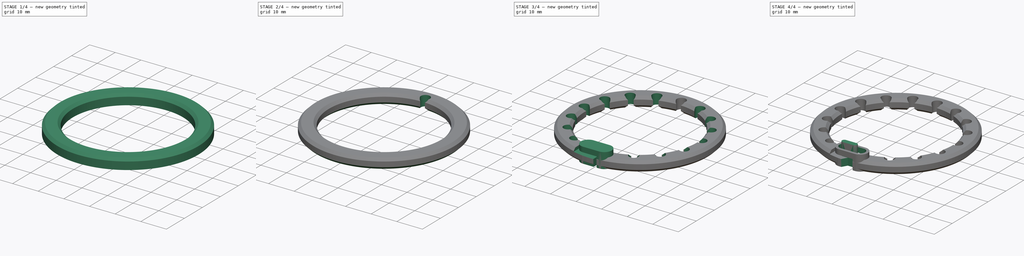
[diagram: build sequence overview — one tinted view per stage of 4, left to right]
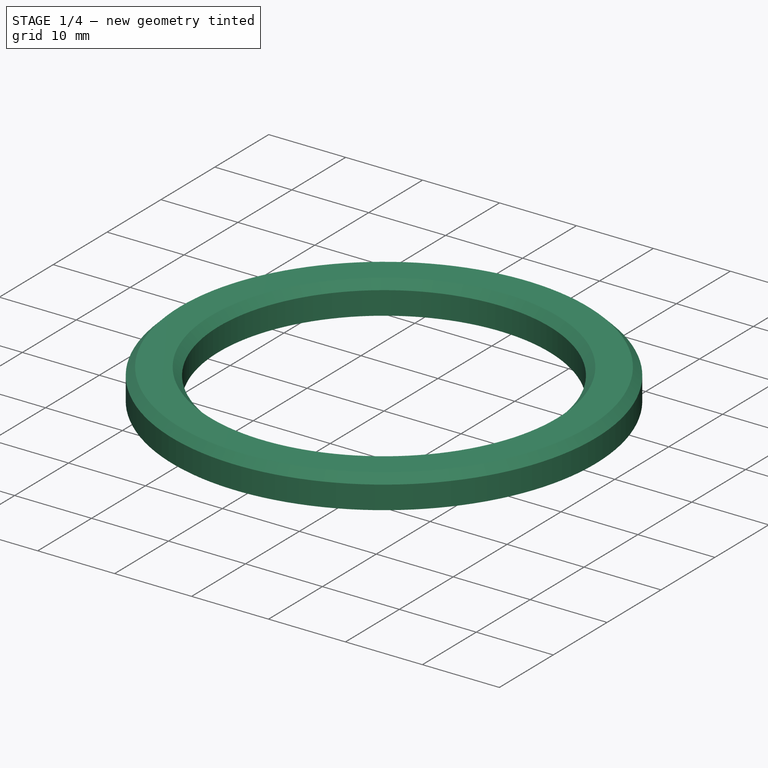
[diagram: stage 1 of 4 — iso view after this stage's code; geometry added in this stage tinted green]
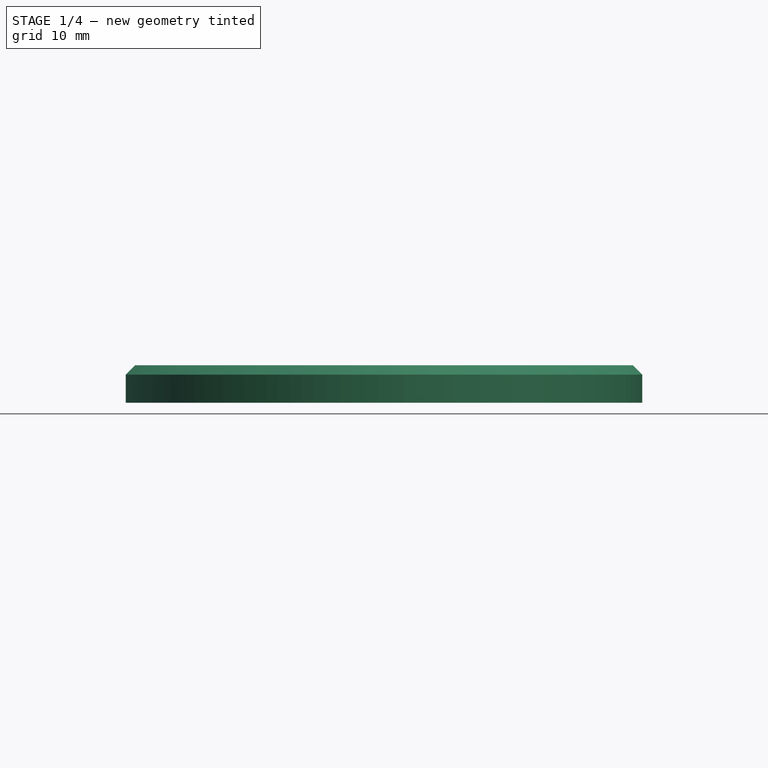
[diagram: stage 1 of 4 — front view after this stage's code; geometry added in this stage tinted green]
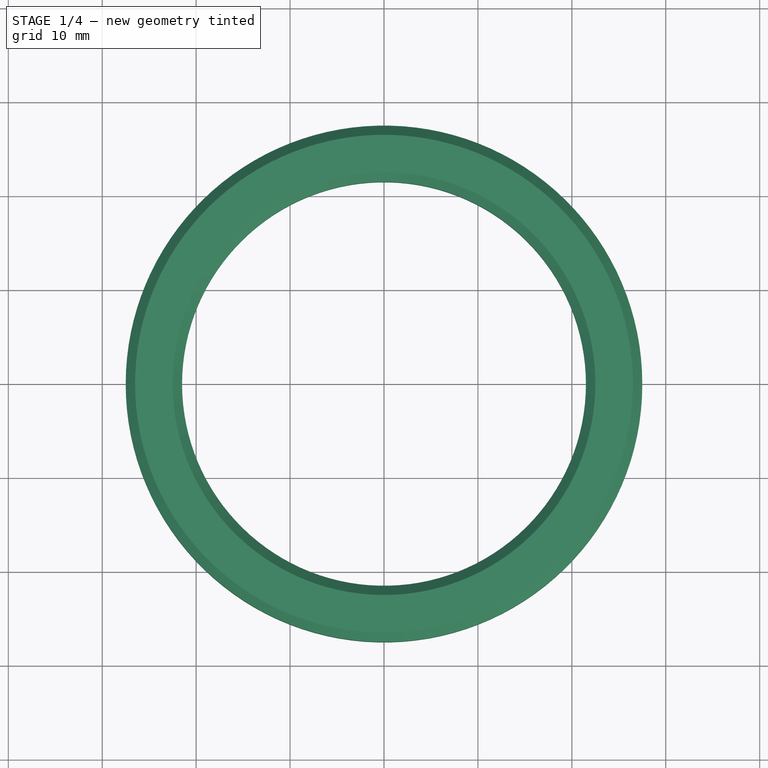
[diagram: stage 1 of 4 — top view after this stage's code; geometry added in this stage tinted green]
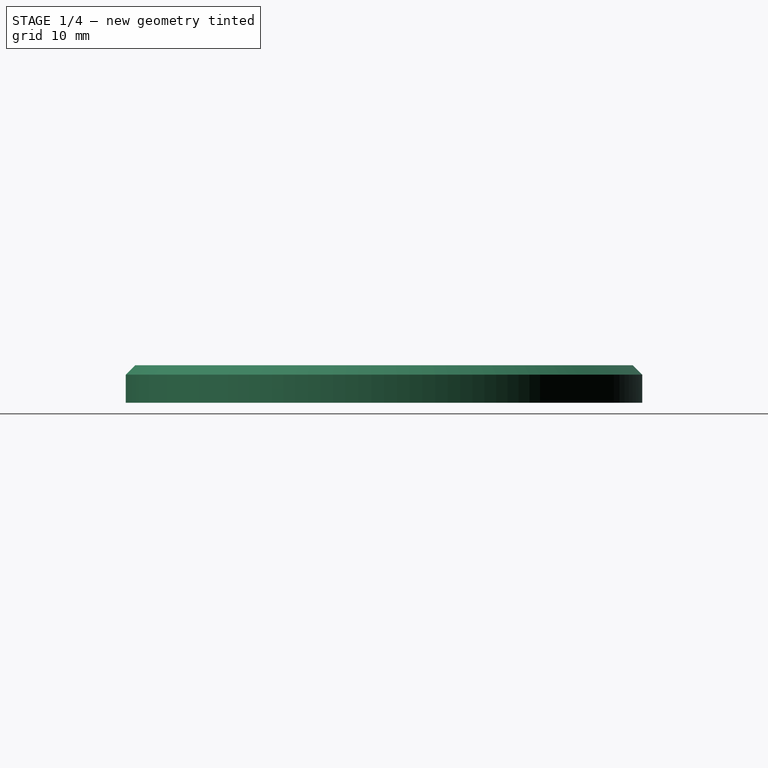
[diagram: stage 1 of 4 — right view after this stage's code; geometry added in this stage tinted green]
FCSTD DOCUMENT  (FreeCAD 0.17R13541 (Git))
Label: BigClip9
License: All rights reserved
LicenseURL: http://en.wikipedia.org/wiki/All_rights_reserved
objects: Sketcher::SketchObject×7, PartDesign::Chamfer×4, PartDesign::Pocket×4, PartDesign::Pad×3, PartDesign::PolarPattern×2, Spreadsheet::Sheet×1, PartDesign::Body×1
note: 28 computed .brp shape members not serialized (recipe doc carries the construction recipe); baked Part::Feature solids carry a one-line shape summary decoded from their .brp

FEATURE [Sketcher::SketchObject] Sketch
  MapMode = 5
  Support = -> [XY_Plane]
  expr: Constraints[3] = P.OuterRadius
  expr: Constraints[2] = P.InnerRadius
  sketch-geometry (2):
    g0: Circle CenterX=0 CenterY=0 CenterZ=0 NormalX=0 NormalY=0 NormalZ=1 AngleXU=0 Radius=21.5
    g1: Circle CenterX=0 CenterY=0 CenterZ=0 NormalX=0 NormalY=0 NormalZ=1 AngleXU=0 Radius=27.5
  constraints (5):
    c: Coincident(g0,g-1)
    c: PointOnObject(g1,g-2)
    c: Radius(g0) = 21.5
    c: Radius(g1) = 27.5
    c: Coincident(g1,g-1)
FEATURE [Spreadsheet::Sheet] Spreadsheet  label="P"
  cells = A1=Inner radius; B1(InnerRadius)==21.5mm; A2=Thick; B2(Thick)==5.5mm; A3=Wide; B3(Wide)==4mm; A4=Fiber radius; B4(FiberRadius)==1.8mm; A5=Outer radius; B5(OuterRadius)==27.5mm
FEATURE [PartDesign::Pad] Pad
  Length = 4
  Length2 = 100
  Profile = -> Sketch
  Type = 0
  expr: Length = P.Wide
FEATURE [Sketcher::SketchObject] Sketch001
  MapMode = 5
  Support = -> [XY_Plane]
  expr: Constraints[6] = P.FiberRadius
  expr: Constraints[3] = P.InnerRadius
  expr: Constraints[2] = P.InnerRadius
  sketch-geometry (3):
    g0: LineSegment StartX=0 StartY=0 StartZ=0 EndX=0.9 EndY=21.4812 EndZ=0
    g1: LineSegment StartX=-0.9 StartY=21.4812 StartZ=0 EndX=0 EndY=0 EndZ=0
    g2: ArcOfCircle CenterX=0 CenterY=23.04 CenterZ=0 NormalX=0 NormalY=0 NormalZ=1 AngleXU=0 Radius=1.8 StartAngle=5.23599 EndAngle=10.472
  constraints (9):
    c: Coincident(g1,g-1)
    c: Coincident(g0,g-1)
    c: Distance(g0) = 21.5
    c: Distance(g1) = 21.5
    c: Coincident(g2,g1)
    c: Coincident(g2,g0)
    c: Radius(g2) = 1.8
    c: Distance(g1,g0) = 1.8
    c: DistanceX(g-1,g2) = 0
FEATURE [PartDesign::Chamfer] Chamfer
  Base = -> Pad [Edge3]
  BaseFeature = -> Pad
  Size = 1
FEATURE [PartDesign::Chamfer] Chamfer001
  Base = -> Chamfer [Edge7]
  BaseFeature = -> Chamfer
  Size = 1
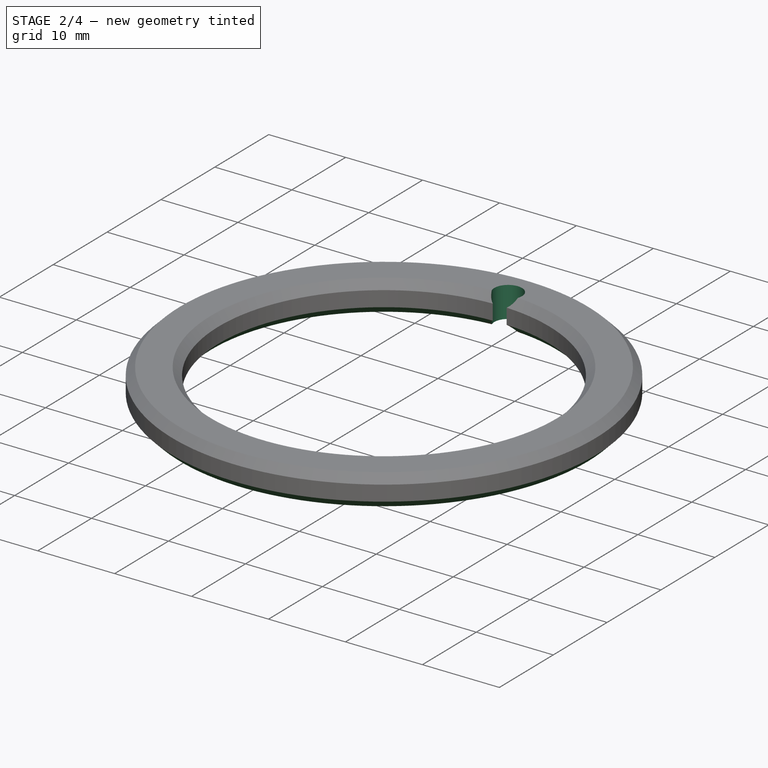
[diagram: stage 2 of 4 — iso view after this stage's code; geometry added in this stage tinted green]
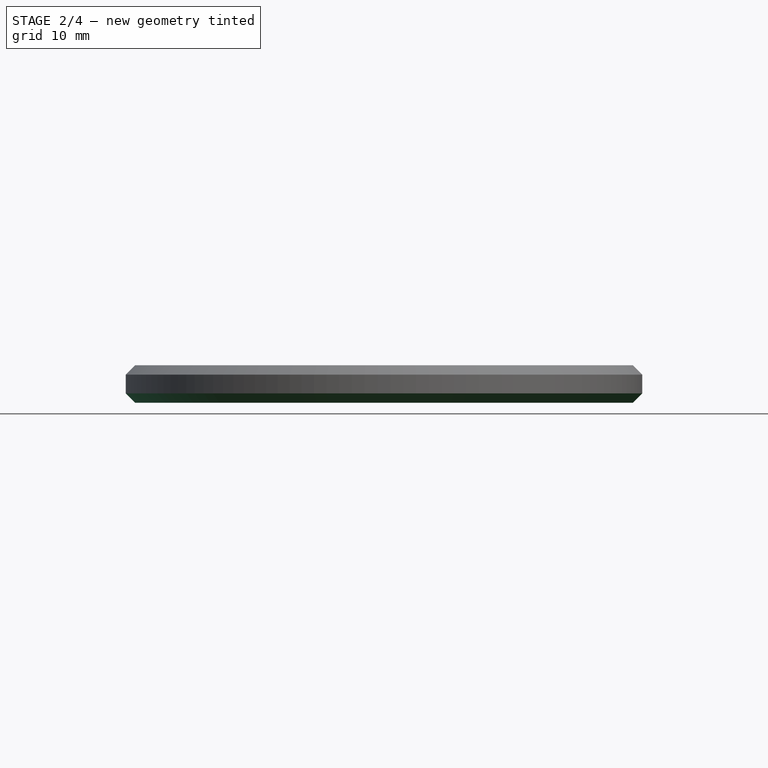
[diagram: stage 2 of 4 — front view after this stage's code; geometry added in this stage tinted green]
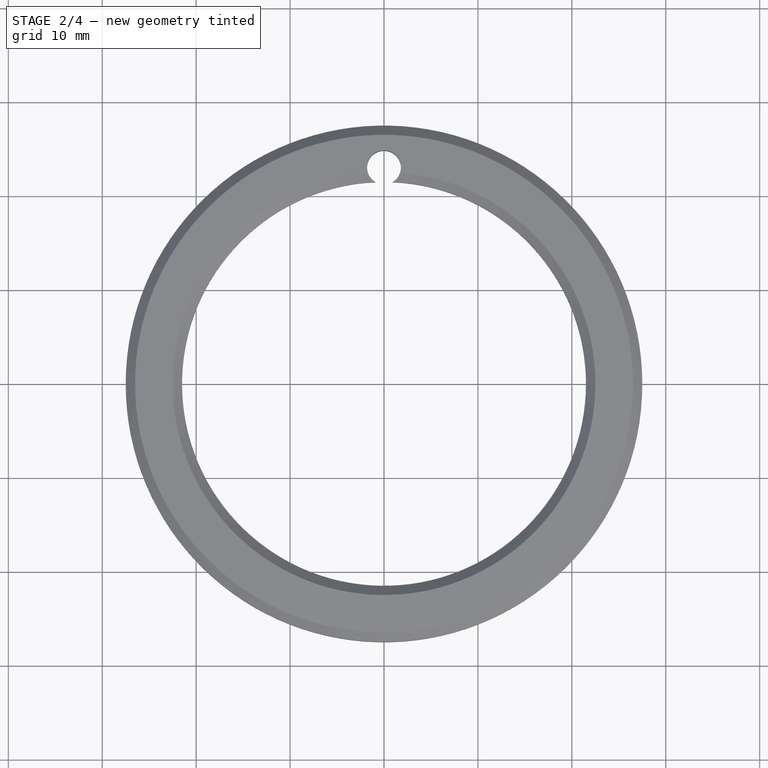
[diagram: stage 2 of 4 — top view after this stage's code; geometry added in this stage tinted green]
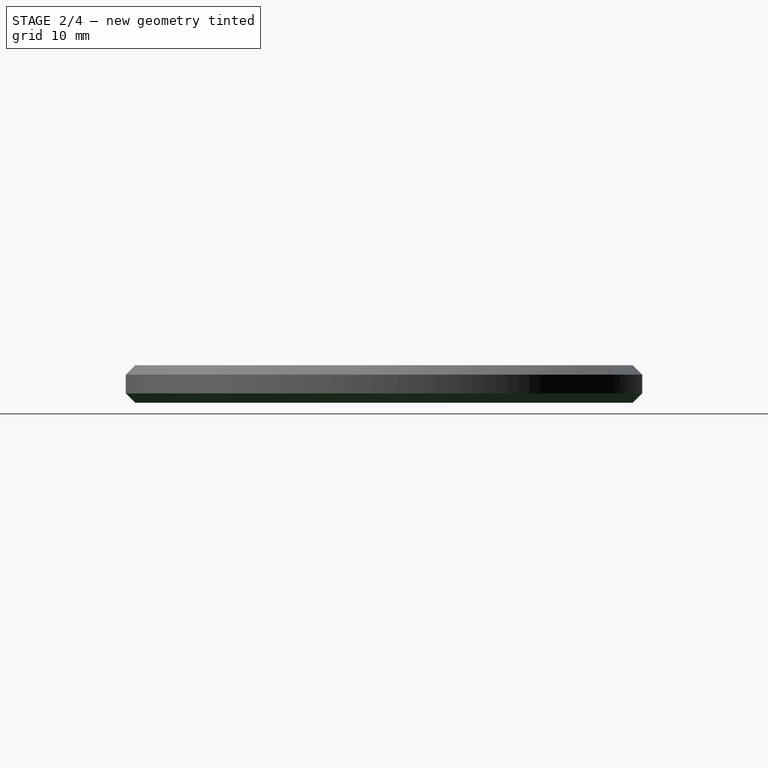
[diagram: stage 2 of 4 — right view after this stage's code; geometry added in this stage tinted green]
FEATURE [PartDesign::Chamfer] Chamfer002
  Base = -> Chamfer001 [Edge8]
  BaseFeature = -> Chamfer001
  Size = 1
FEATURE [PartDesign::Chamfer] Chamfer003
  Base = -> Chamfer002 [Edge8]
  BaseFeature = -> Chamfer002
  Size = 1
FEATURE [PartDesign::Pocket] Pocket
  BaseFeature = -> Chamfer003
  Length = 5
  Length2 = 100
  Profile = -> Sketch001
  Reversed = true
  Type = 1
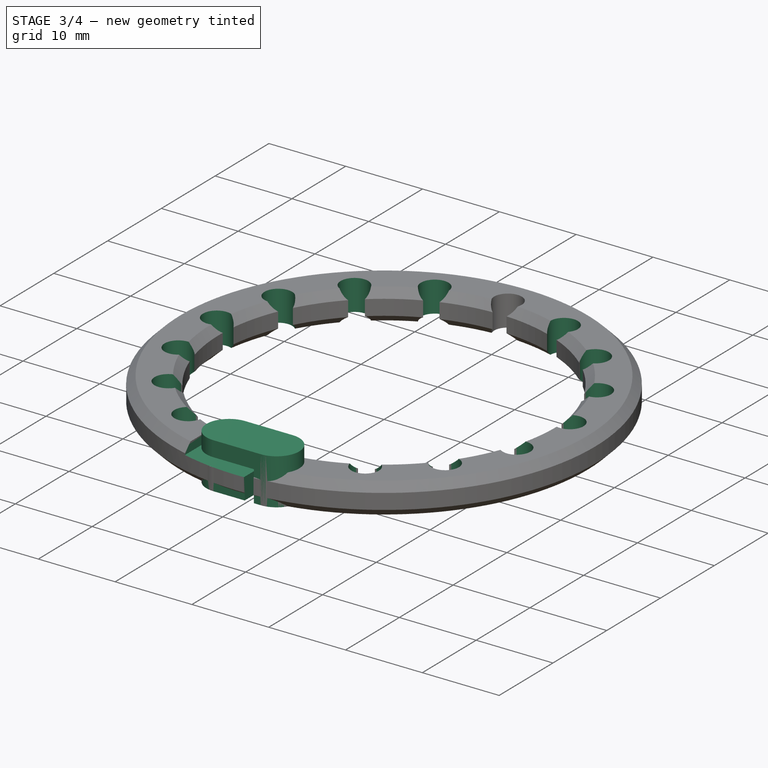
[diagram: stage 3 of 4 — iso view after this stage's code; geometry added in this stage tinted green]
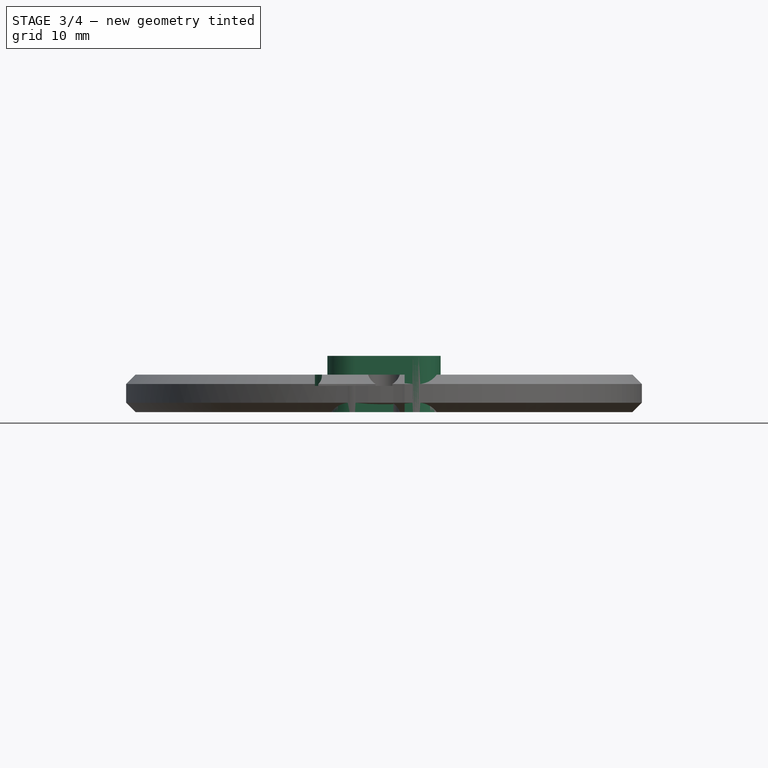
[diagram: stage 3 of 4 — front view after this stage's code; geometry added in this stage tinted green]
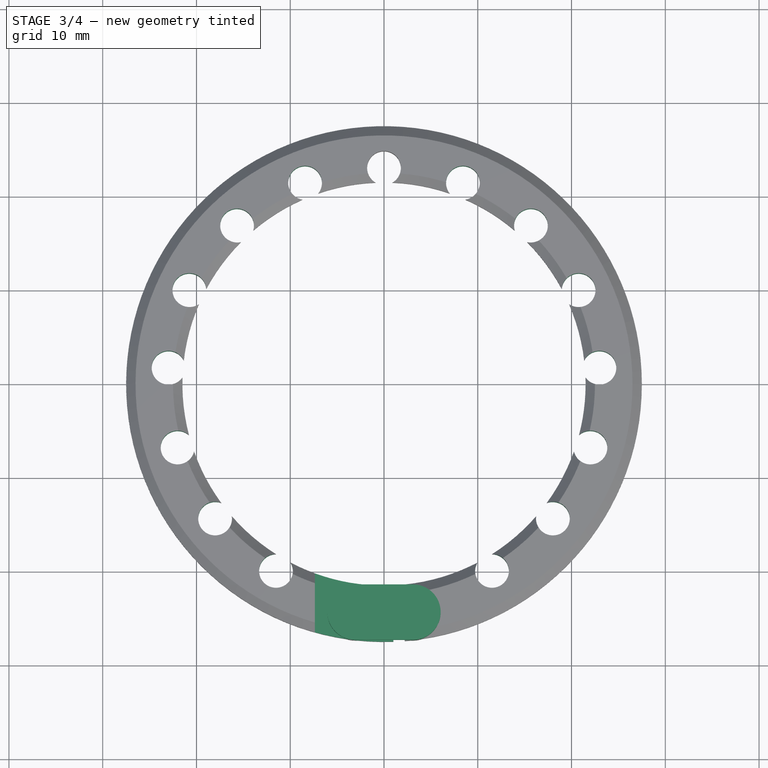
[diagram: stage 3 of 4 — top view after this stage's code; geometry added in this stage tinted green]
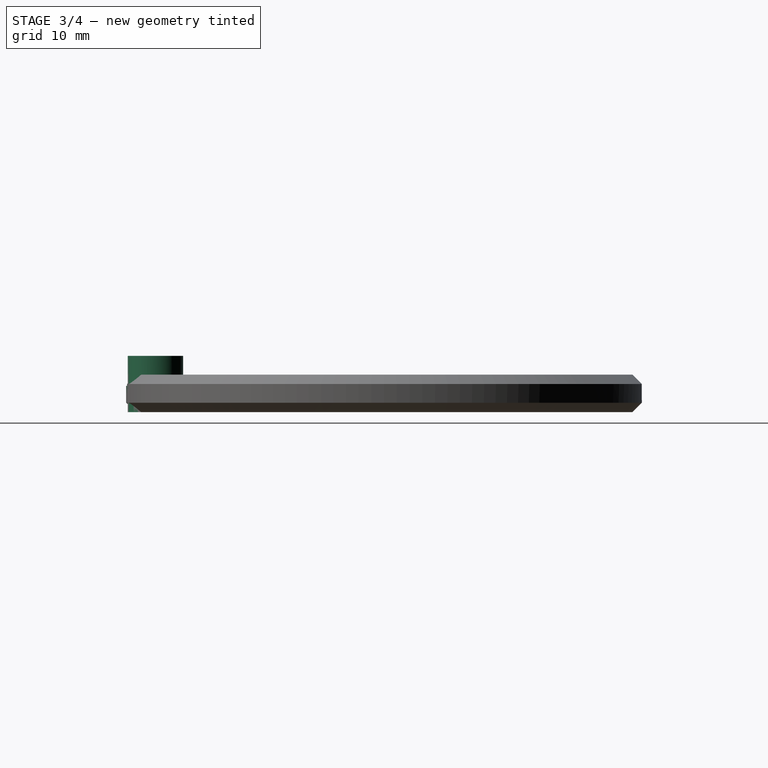
[diagram: stage 3 of 4 — right view after this stage's code; geometry added in this stage tinted green]
FEATURE [PartDesign::PolarPattern] PolarPattern
  Angle = 150
  Axis = -> Sketch001 [N_Axis]
  BaseFeature = -> Pocket
  Occurrences = 8
  Originals = -> [Pocket]
FEATURE [PartDesign::PolarPattern] PolarPattern001
  Angle = 150
  Axis = -> Sketch001 [N_Axis]
  BaseFeature = -> PolarPattern
  Occurrences = 8
  Originals = -> [Pocket]
  Reversed = true
FEATURE [Sketcher::SketchObject] Sketch002
  MapMode = 5
  Placement = pos=(0,0,0) rot=(1,0,0;1.5708rad)
  Support = -> [XZ_Plane]
  sketch-geometry (8):
    g0: LineSegment StartX=2.2 StartY=0 StartZ=0 EndX=2.2 EndY=4 EndZ=0
    g1: LineSegment StartX=2.2 StartY=4 StartZ=0 EndX=-6.16614 EndY=4 EndZ=0
    g2: LineSegment StartX=1 StartY=0 StartZ=0 EndX=1 EndY=2.8 EndZ=0
    g3: LineSegment StartX=1 StartY=2.8 StartZ=0 EndX=-7.36614 EndY=2.8 EndZ=0
    g4: LineSegment StartX=-7.36614 StartY=2.8 StartZ=0 EndX=-7.36614 EndY=6.8 EndZ=0
    g5: LineSegment StartX=-7.36614 StartY=6.8 StartZ=0 EndX=-6.16614 EndY=6.8 EndZ=0
    g6: LineSegment StartX=-6.16614 StartY=6.8 StartZ=0 EndX=-6.16614 EndY=4 EndZ=0
    g7: LineSegment StartX=1 StartY=0 StartZ=0 EndX=2.2 EndY=0 EndZ=0
  constraints (23):
    c: Coincident(g0,g1)
    c: Horizontal(g1)
    c: Vertical(g0)
    c: PointOnObject(g2,g-1)
    c: DistanceX(g2,g0) = 1.2
    c: DistanceY(g0,g0) = 4
    c: Vertical(g2)
    c: Coincident(g3,g2)
    c: Horizontal(g3)
    c: Coincident(g4,g3)
    c: Vertical(g4)
    c: Horizontal(g5)
    c: Coincident(g6,g5)
    c: Vertical(g6)
    c: Coincident(g5,g4)
    c: Coincident(g1,g6)
    c: DistanceY(g2,g0) = 1.2
    c: DistanceX(g4,g5) = 1.2
    c: DistanceY(g4,g4) = 4
    c: Coincident(g7,g2)
    c: Coincident(g7,g0)
    c: Horizontal(g7)
    c: DistanceX(g-1,g2) = 1
FEATURE [Sketcher::SketchObject] Sketch003
  MapMode = 5
  sketch-geometry (4):
    g0: ArcOfCircle CenterX=-3.08932 CenterY=-24.3794 CenterZ=0 NormalX=0 NormalY=0 NormalZ=1 AngleXU=0 Radius=2.9518 StartAngle=1.5708 EndAngle=4.71239
    g1: ArcOfCircle CenterX=3.08932 CenterY=-24.3794 CenterZ=0 NormalX=0 NormalY=0 NormalZ=1 AngleXU=0 Radius=2.9518 StartAngle=4.71239 EndAngle=7.85398
    g2: LineSegment StartX=-3.08932 StartY=-27.3312 StartZ=0 EndX=3.08932 EndY=-27.3312 EndZ=0
    g3: LineSegment StartX=-3.08932 StartY=-21.4276 StartZ=0 EndX=3.08932 EndY=-21.4276 EndZ=0
  constraints (7):
    c: Tangent(g0,g3) = 1.5708
    c: Tangent(g0,g2) = -1.5708
    c: Tangent(g2,g1) = -1.5708
    c: Tangent(g3,g1) = 1.5708
    c: Horizontal(g2)
    c: Equal(g0,g1)
    c: Symmetric(g1,g0,g-2)
FEATURE [PartDesign::Pad] Pad001
  BaseFeature = -> PolarPattern001
  Length = 6
  Length2 = 100
  Profile = -> Sketch003
  Type = 0
FEATURE [PartDesign::Pocket] Pocket001
  BaseFeature = -> Pad001
  Length = 5
  Length2 = 100
  Profile = -> Sketch002
  Reversed = true
  Type = 1
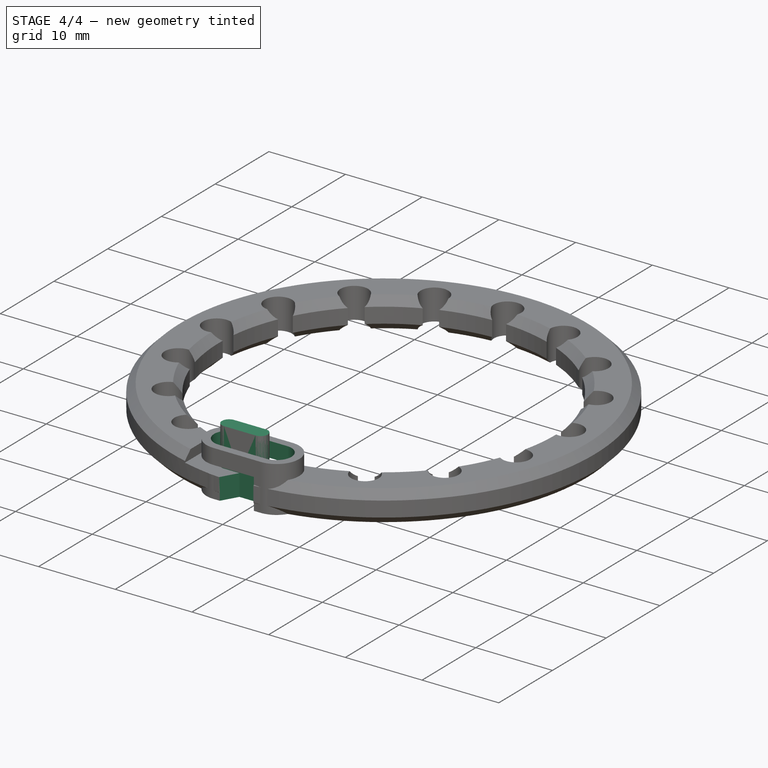
[diagram: stage 4 of 4 — iso view after this stage's code; geometry added in this stage tinted green]
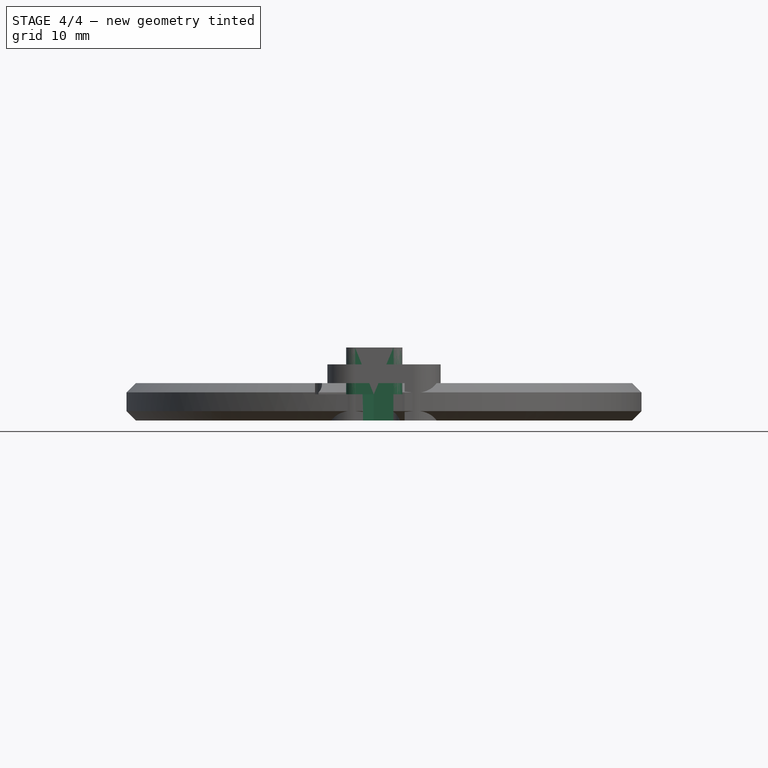
[diagram: stage 4 of 4 — front view after this stage's code; geometry added in this stage tinted green]
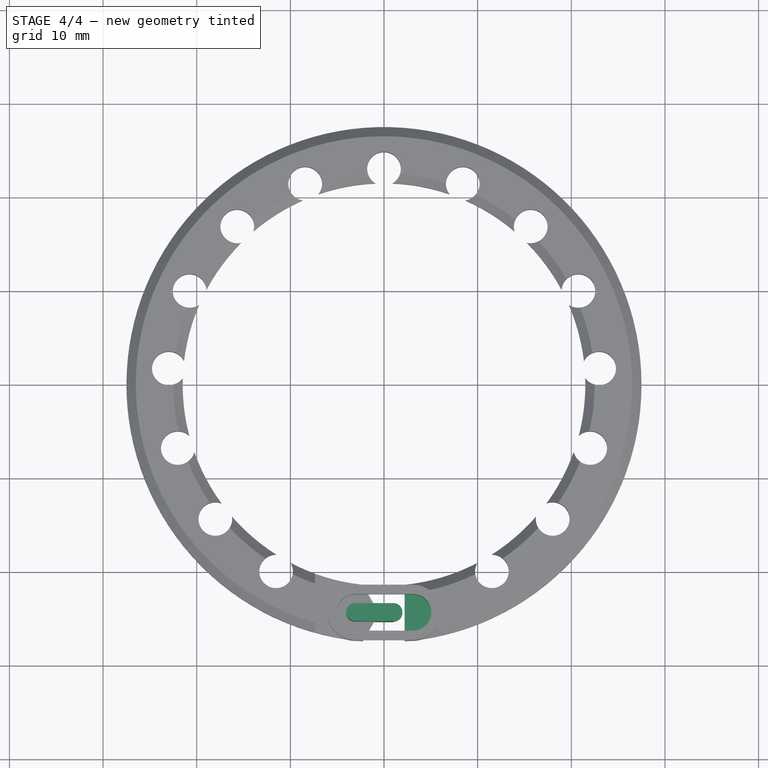
[diagram: stage 4 of 4 — top view after this stage's code; geometry added in this stage tinted green]
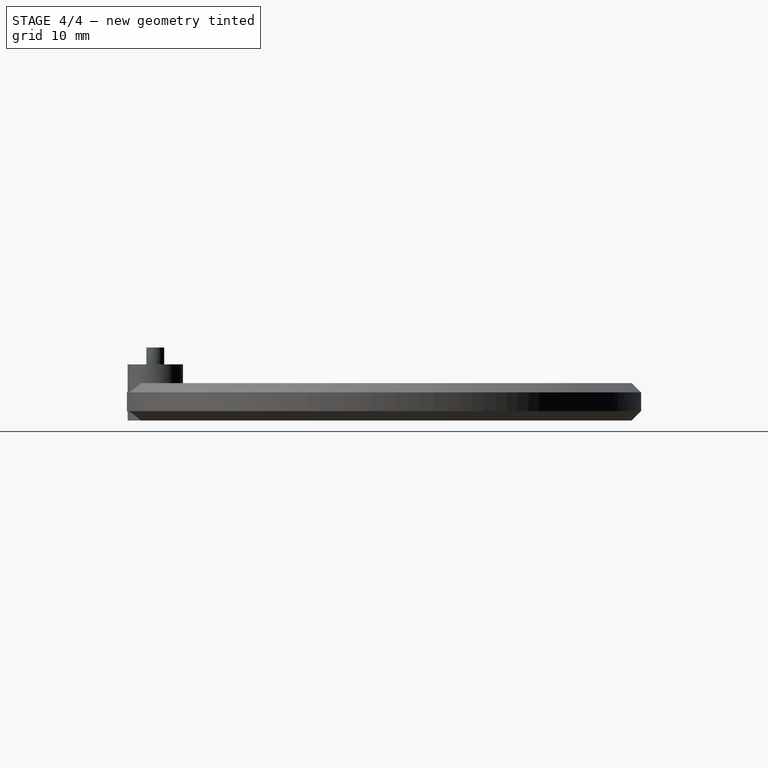
[diagram: stage 4 of 4 — right view after this stage's code; geometry added in this stage tinted green]
FEATURE [Sketcher::SketchObject] Sketch004
  ExternalGeometry = -> [Pocket001]
  MapMode = 5
  Placement = pos=(0,0,6) rot=(0,0,1;0rad)
  Support = -> [Pocket001]
  sketch-geometry (4):
    g0: ArcOfCircle CenterX=-3.08932 CenterY=-24.3794 CenterZ=0 NormalX=0 NormalY=0 NormalZ=1 AngleXU=0 Radius=1.9518 StartAngle=1.5708 EndAngle=4.71239
    g1: ArcOfCircle CenterX=3.08932 CenterY=-24.3794 CenterZ=0 NormalX=0 NormalY=0 NormalZ=1 AngleXU=0 Radius=1.9518 StartAngle=4.71239 EndAngle=7.85398
    g2: LineSegment StartX=-3.08932 StartY=-26.3312 StartZ=0 EndX=3.08932 EndY=-26.3312 EndZ=0
    g3: LineSegment StartX=-3.08932 StartY=-22.4276 StartZ=0 EndX=3.08932 EndY=-22.4276 EndZ=0
  constraints (9):
    c: Tangent(g0,g3) = 1.5708
    c: Tangent(g0,g2) = -1.5708
    c: Tangent(g2,g1) = -1.5708
    c: Tangent(g3,g1) = 1.5708
    c: Horizontal(g2)
    c: Equal(g0,g1)
    c: Coincident(g0,g-3)
    c: DistanceY(g0,g-3) = 1
    c: Symmetric(g0,g1,g-2)
FEATURE [PartDesign::Pocket] Pocket002
  BaseFeature = -> Pocket001
  Length = 3
  Length2 = 100
  Profile = -> Sketch004
  Type = 0
FEATURE [Sketcher::SketchObject] Sketch005
  ExternalGeometry = -> [Pocket002]
  MapMode = 5
  Placement = pos=(0,0,2.8) rot=(0,0,1;0rad)
  Support = -> [Pocket002]
  sketch-geometry (4):
    g0: ArcOfCircle CenterX=-3.08932 CenterY=-24.3794 CenterZ=0 NormalX=0 NormalY=0 NormalZ=1 AngleXU=0 Radius=0.951795 StartAngle=1.5708 EndAngle=4.71239
    g1: ArcOfCircle CenterX=1.0108 CenterY=-24.3794 CenterZ=0 NormalX=0 NormalY=0 NormalZ=1 AngleXU=0 Radius=0.951795 StartAngle=4.71239 EndAngle=7.85398
    g2: LineSegment StartX=-3.08932 StartY=-25.3312 StartZ=0 EndX=1.0108 EndY=-25.3312 EndZ=0
    g3: LineSegment StartX=-3.08932 StartY=-23.4276 StartZ=0 EndX=1.0108 EndY=-23.4276 EndZ=0
  constraints (8):
    c: Tangent(g0,g3) = 1.5708
    c: Tangent(g0,g2) = -1.5708
    c: Tangent(g2,g1) = -1.5708
    c: Tangent(g3,g1) = 1.5708
    c: Horizontal(g2)
    c: Equal(g0,g1)
    c: Coincident(g0,g-3)
    c: DistanceY(g-3,g0) = 1
FEATURE [PartDesign::Pad] Pad002
  BaseFeature = -> Pocket002
  Length = 5
  Length2 = 100
  Profile = -> Sketch005
  Type = 0
FEATURE [Sketcher::SketchObject] Sketch006
  ExternalGeometry = -> [Pad002]
  MapMode = 5
  Placement = pos=(0,0,2.8) rot=(0,0,1;0rad)
  Support = -> [Pad002]
  sketch-geometry (8):
    g0: LineSegment StartX=-3.03103 StartY=-20.0645 StartZ=0 EndX=-1.08932 EndY=-23.4276 EndZ=0
    g1: LineSegment StartX=-1.08932 StartY=-23.4276 StartZ=0 EndX=1.0108 EndY=-23.4276 EndZ=0
    g2: LineSegment StartX=1.0108 StartY=-23.4276 StartZ=0 EndX=1.0108 EndY=-25.3312 EndZ=0
    g3: LineSegment StartX=1.0108 StartY=-25.3312 StartZ=0 EndX=-1.08932 EndY=-25.3312 EndZ=0
    g4: LineSegment StartX=-1.08932 StartY=-25.3312 StartZ=0 EndX=-3.03103 EndY=-28.6943 EndZ=0
    g5: LineSegment StartX=-3.03103 StartY=-28.6943 StartZ=0 EndX=1.78805 EndY=-28.6943 EndZ=0
    g6: LineSegment StartX=1.78805 StartY=-28.6943 StartZ=0 EndX=1.78805 EndY=-20.0645 EndZ=0
    g7: LineSegment StartX=1.78805 StartY=-20.0645 StartZ=0 EndX=-3.03103 EndY=-20.0645 EndZ=0
  constraints (21):
    c: PointOnObject(g0,g-3)
    c: Coincident(g1,g-3)
    c: Horizontal(g1)
    c: Coincident(g2,g1)
    c: Coincident(g2,g-4)
    c: Coincident(g3,g2)
    c: PointOnObject(g3,g-4)
    c: Horizontal(g5)
    c: Coincident(g6,g5)
    c: Vertical(g6)
    c: Horizontal(g7)
    c: Coincident(g0,g7)
    c: Coincident(g7,g6)
    c: Angle(g1,g0) = 2.0944
    c: Angle(g4,g3) = 2.0944
    c: Coincident(g1,g0)
    c: Coincident(g3,g4)
    c: Coincident(g4,g5)
    c: DistanceX(g-4,g3) = 2
    c: Equal(g1,g3)
    c: Equal(g0,g4)
FEATURE [PartDesign::Pocket] Pocket003
  BaseFeature = -> Pad002
  Length = 5
  Length2 = 100
  Profile = -> Sketch006
  Type = 0
FEATURE [PartDesign::Body] Body
  Group = -> [Sketch,Pad,Sketch001,Chamfer,Chamfer001,Chamfer002,Chamfer003,Pocket,PolarPattern,PolarPattern001,Sketch003,Pad001,Sketch002,Pocket001,Sketch004,Pocket002,Sketch005,Pad002,Sketch006,Pocket003]
  Origin = -> Origin
  Tip = -> Pocket003
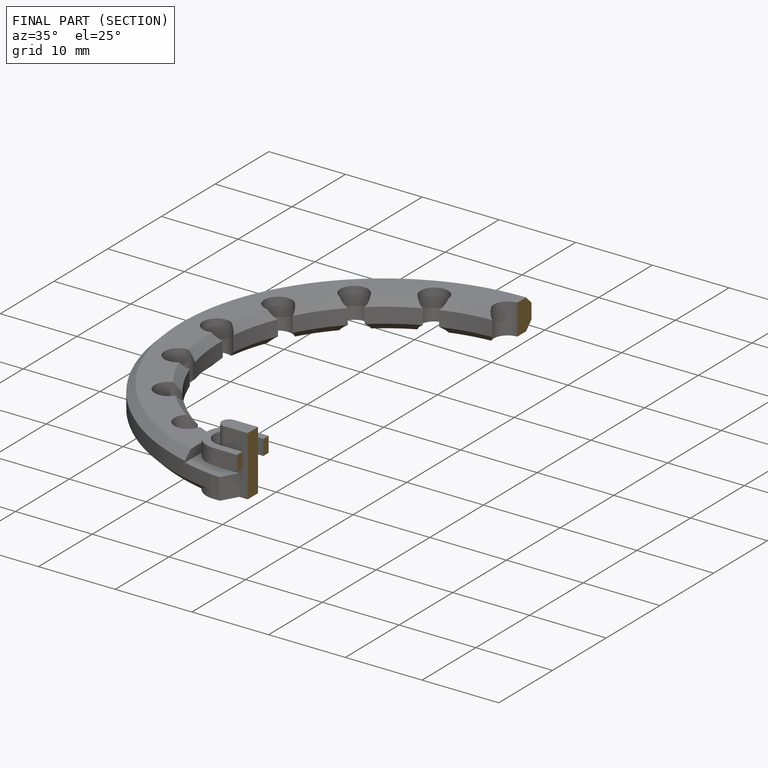
[diagram: finished part — half-section view (interior)]
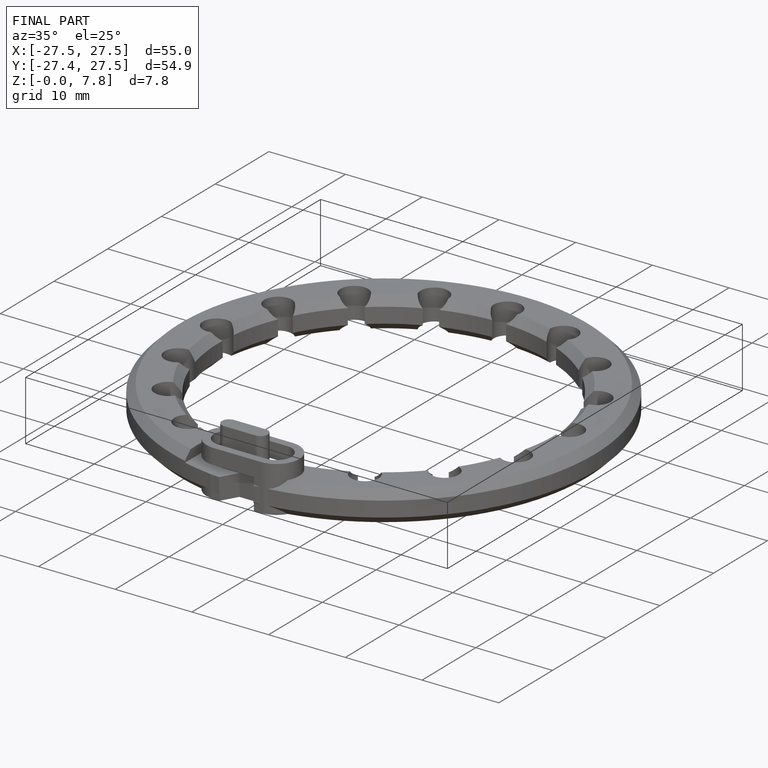
[diagram: finished part — iso view with bounding-box wireframe]
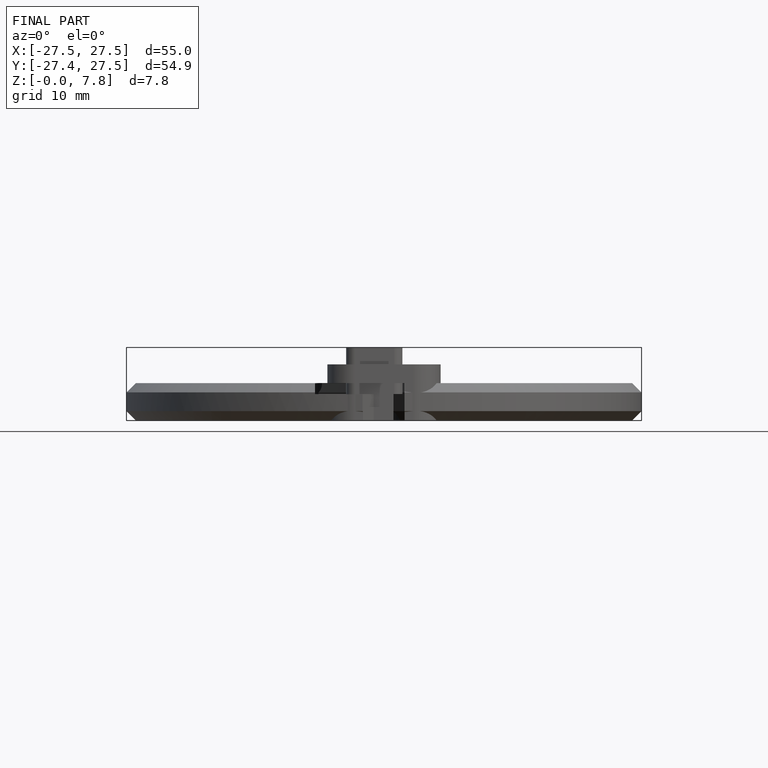
[diagram: finished part — front view with bounding-box wireframe]
